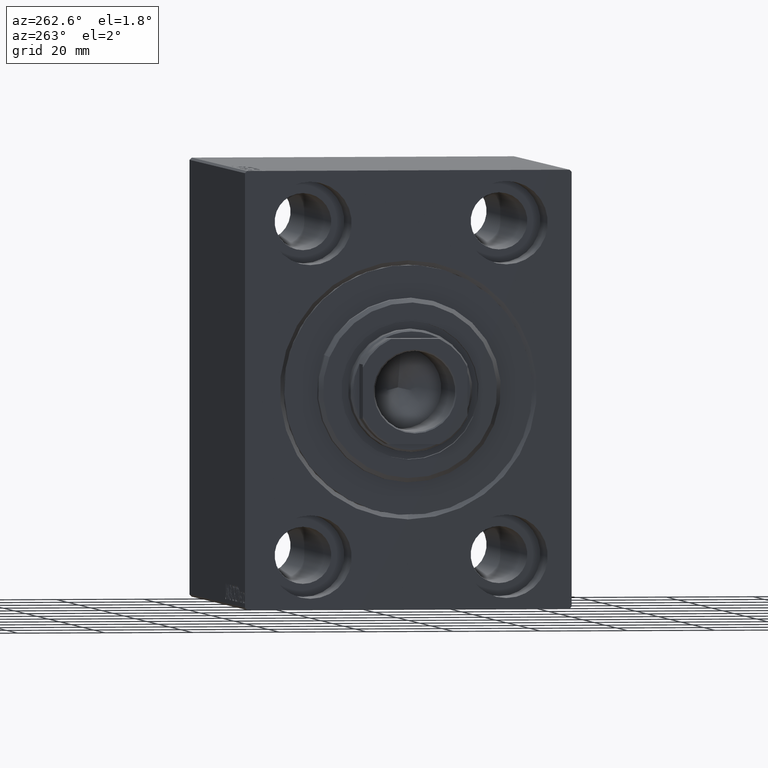
[diagram: clean part render]
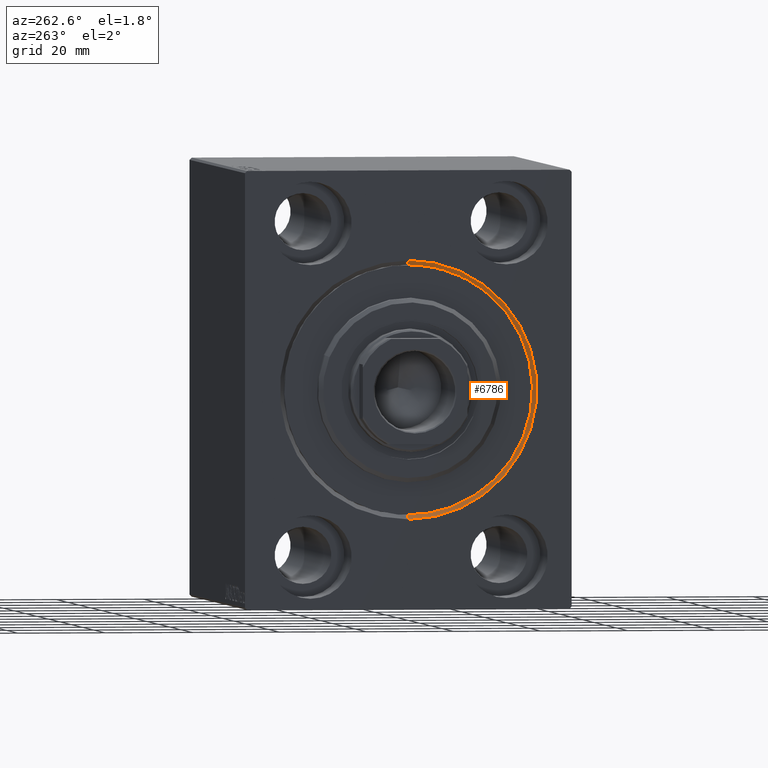
[diagram: same view with one face highlighted and labeled with its STEP entity id]
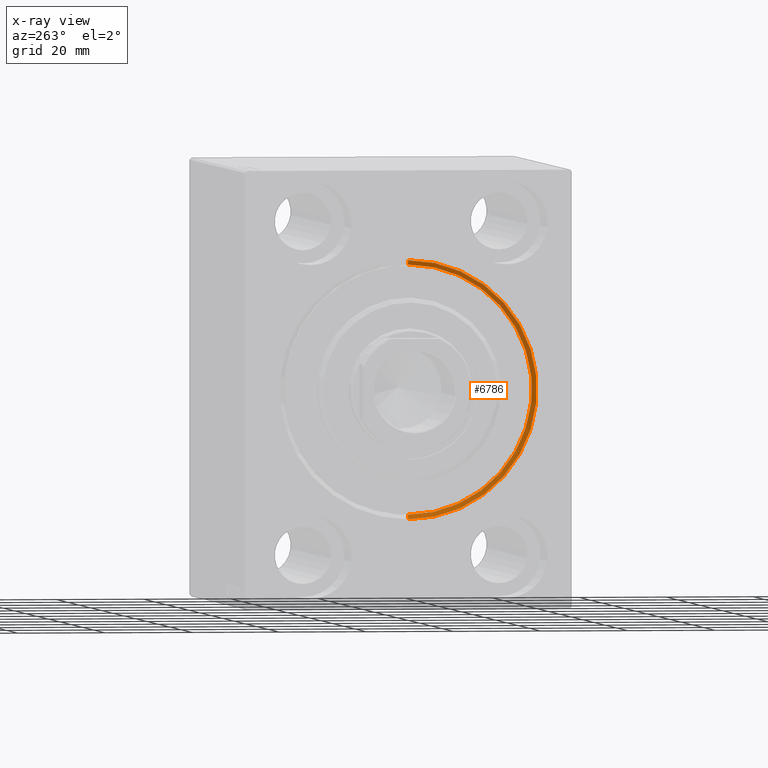
[diagram: x-ray of the same camera — body ghosted, the highlighted face saturated]
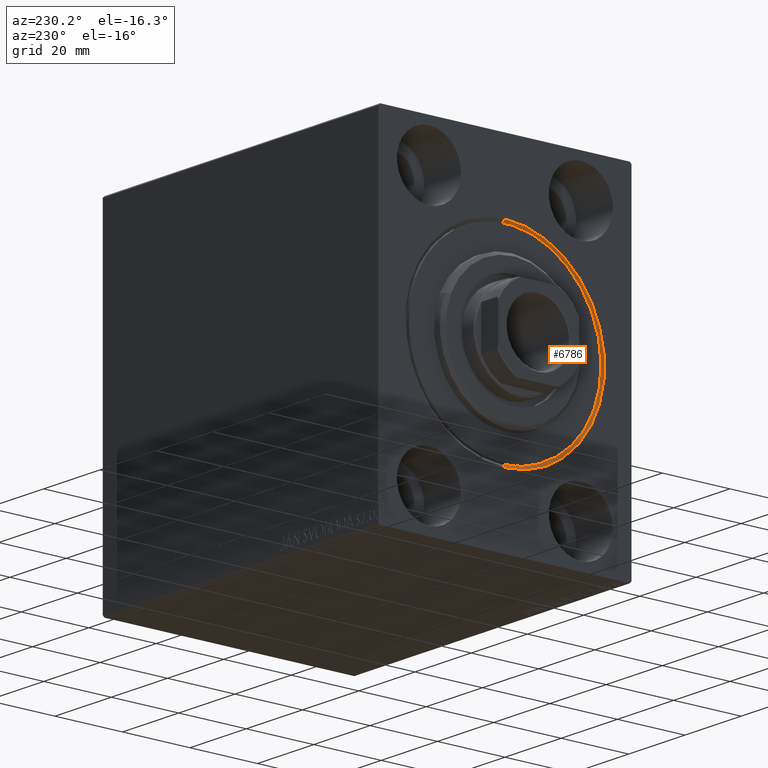
[diagram: same view with one face highlighted and labeled with its STEP entity id]
A machine part, auxiliary view. The second image highlights one B-rep face of the part: STEP entity #6786.
The next image is the same camera in x-ray: the body ghosted, the highlighted face saturated — about 0% of this face is hidden behind the body in this view.
A second angle (auxiliary view) of the same face is appended — the face is thin or edge-on in the first view.
In plain terms, the highlighted conical surface has half-angle 45 deg.
Its self-contained STEP definition (entity closure, byte-faithful):
#146 = DIRECTION ( 'NONE',  ( 1.000000000000000000, 0.000000000000000000, 0.000000000000000000 ) ) ;
#1000 = VECTOR ( 'NONE', #30927, 1000.000000000000000 ) ;
#3893 = CARTESIAN_POINT ( 'NONE',  ( 0.000000000000000000, 0.000000000000000000, 29.50000000000001421 ) ) ;
#4006 = LINE ( 'NONE', #30492, #1000 ) ;
#6745 = ORIENTED_EDGE ( 'NONE', *, *, #41558, .T. ) ;
#6786 = ADVANCED_FACE ( 'NONE', ( #30412 ), #7056, .F. ) ;
#7056 = CONICAL_SURFACE ( 'NONE', #37372, 28.50000000000000000, 0.7853981633974466137 ) ;
#7855 = EDGE_CURVE ( 'NONE', #37635, #43285, #36635, .T. ) ;
#9429 = CARTESIAN_POINT ( 'NONE',  ( 0.000000000000000000, 0.000000000000000000, 0.000000000000000000 ) ) ;
#11108 = DIRECTION ( 'NONE',  ( -0.7071067811865487940, 0.000000000000000000, 0.7071067811865463515 ) ) ;
#16391 = CARTESIAN_POINT ( 'NONE',  ( 0.000000000000000000, 3.612708057484693970E-15, -29.50000000000001421 ) ) ;
#17989 = DIRECTION ( 'NONE',  ( -1.000000000000000000, 0.000000000000000000, 0.000000000000000000 ) ) ;
#18126 = CARTESIAN_POINT ( 'NONE',  ( 1.000000000000018208, 3.490243377569956456E-15, -28.50000000000000000 ) ) ;
#19306 = ORIENTED_EDGE ( 'NONE', *, *, #21424, .F. ) ;
#19566 = DIRECTION ( 'NONE',  ( 0.000000000000000000, 0.000000000000000000, -1.000000000000000000 ) ) ;
#19758 = EDGE_LOOP ( 'NONE', ( #19306, #6745, #25390, #19899 ) ) ;
#19899 = ORIENTED_EDGE ( 'NONE', *, *, #40431, .F. ) ;
#20827 = LINE ( 'NONE', #24352, #29853 ) ;
#21424 = EDGE_CURVE ( 'NONE', #40024, #28778, #34460, .T. ) ;
#22925 = DIRECTION ( 'NONE',  ( 0.000000000000000000, 0.000000000000000000, 1.000000000000000000 ) ) ;
#23254 = AXIS2_PLACEMENT_3D ( 'NONE', #9429, #146, #19566 ) ;
#24352 = CARTESIAN_POINT ( 'NONE',  ( 1.000000000000018208, 0.000000000000000000, 28.50000000000000000 ) ) ;
#25390 = ORIENTED_EDGE ( 'NONE', *, *, #7855, .F. ) ;
#28778 = VERTEX_POINT ( 'NONE', #43119 ) ;
#29764 = DIRECTION ( 'NONE',  ( -1.000000000000000000, 0.000000000000000000, 0.000000000000000000 ) ) ;
#29853 = VECTOR ( 'NONE', #11108, 1000.000000000000000 ) ;
#30412 = FACE_OUTER_BOUND ( 'NONE', #19758, .T. ) ;
#30492 = CARTESIAN_POINT ( 'NONE',  ( 1.000000000000018208, 3.490243377569956456E-15, -28.50000000000000000 ) ) ;
#30927 = DIRECTION ( 'NONE',  ( -0.7071067811865487940, 8.659560562354919300E-17, -0.7071067811865463515 ) ) ;
#32691 = CARTESIAN_POINT ( 'NONE',  ( 1.000000000000018208, 0.000000000000000000, 0.000000000000000000 ) ) ;
#33747 = AXIS2_PLACEMENT_3D ( 'NONE', #32691, #17989, #36010 ) ;
#34460 = CIRCLE ( 'NONE', #33747, 28.50000000000000000 ) ;
#36010 = DIRECTION ( 'NONE',  ( 0.000000000000000000, 0.000000000000000000, -1.000000000000000000 ) ) ;
#36635 = CIRCLE ( 'NONE', #23254, 29.50000000000001421 ) ;
#37372 = AXIS2_PLACEMENT_3D ( 'NONE', #39710, #29764, #22925 ) ;
#37635 = VERTEX_POINT ( 'NONE', #3893 ) ;
#39710 = CARTESIAN_POINT ( 'NONE',  ( 1.000000000000018208, 0.000000000000000000, 0.000000000000000000 ) ) ;
#40024 = VERTEX_POINT ( 'NONE', #18126 ) ;
#40431 = EDGE_CURVE ( 'NONE', #28778, #37635, #20827, .T. ) ;
#41558 = EDGE_CURVE ( 'NONE', #40024, #43285, #4006, .T. ) ;
#43119 = CARTESIAN_POINT ( 'NONE',  ( 1.000000000000018208, 0.000000000000000000, 28.50000000000000000 ) ) ;
#43285 = VERTEX_POINT ( 'NONE', #16391 ) ;